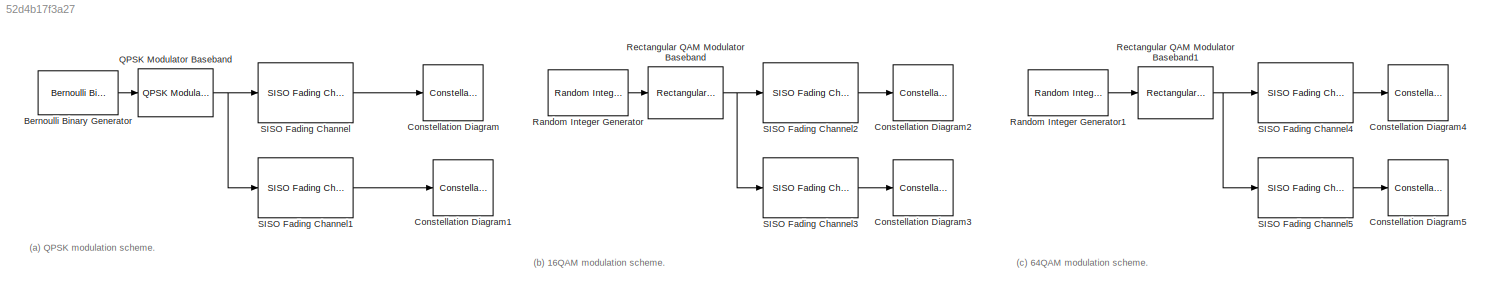
MODEL slx_52d4b17f3a27
KIND model
CONFIG AbsTol = auto
CONFIG EnableMultiTasking = off
CONFIG FixedStep = auto
CONFIG MaxStep = auto
CONFIG MinStep = auto
CONFIG RelTol = 1e-3
CONFIG SampleTimeConstraint = Unconstrained
CONFIG Solver = VariableStepAuto
CONFIG SolverName = VariableStepAuto
CONFIG StartTime = 0.0
CONFIG StopTime = 10.0
BLOCK [Reference] Bernoulli Binary Generator  REF=commrandsrc3/Bernoulli Binary
Generator
  Ports = [0, 1]
  SourceBlock = commrandsrc3/Bernoulli Binary\nGenerator
  SourceProductBaseCode = CM
  SourceProductName = Communications System Toolbox
  SourceType = Bernoulli Binary Generator
BLOCK [ConstellationDiagram] Constellation Diagram
  Ports = [1]
  ScopeSpecificationString = comm.scopes.ConstellationDiagramBlockCfg('CurrentConfiguration', extmgr.ConfigurationSet(extmgr.Configuration('Core','General UI',true,'FigureColor',[1 1 1]),extmgr.Configuration('Core','Source UI',true),extmgr.Configuration('Sources','WiredSimulink',true),extmgr.Configuration('Visuals','Constellation',true,'MinYLim','-1.4915','MaxYLim','0.9514','MinXLim','-1.4915','MaxXLim','0.9514','LineProperti...<+640ch>
BLOCK [ConstellationDiagram] Constellation Diagram1
  Ports = [1]
  ScopeSpecificationString = comm.scopes.ConstellationDiagramBlockCfg('CurrentConfiguration', extmgr.ConfigurationSet(extmgr.Configuration('Core','General UI',true,'FigureColor',[1 1 1]),extmgr.Configuration('Core','Source UI',true),extmgr.Configuration('Sources','WiredSimulink',true),extmgr.Configuration('Visuals','Constellation',true,'MinYLim','-0.88388','MaxYLim','0.88388','MinXLim','-0.88388','MaxXLim','0.88388','Referenc...<+695ch>
BLOCK [ConstellationDiagram] Constellation Diagram2
  Ports = [1]
  ScopeSpecificationString = comm.scopes.ConstellationDiagramBlockCfg('CurrentConfiguration', extmgr.ConfigurationSet(extmgr.Configuration('Core','General UI',true,'FigureColor',[1 1 1]),extmgr.Configuration('Core','Source UI',true),extmgr.Configuration('Sources','WiredSimulink',true),extmgr.Configuration('Visuals','Constellation',true,'MinYLim','-6.9427','MaxYLim','6.9427','MinXLim','-6.9427','MaxXLim','6.9427','ReferenceMar...<+685ch>
BLOCK [ConstellationDiagram] Constellation Diagram3
  Ports = [1]
  ScopeSpecificationString = comm.scopes.ConstellationDiagramBlockCfg('CurrentConfiguration', extmgr.ConfigurationSet(extmgr.Configuration('Core','General UI',true,'FigureColor',[1 1 1]),extmgr.Configuration('Core','Source UI',true),extmgr.Configuration('Sources','WiredSimulink',true),extmgr.Configuration('Visuals','Constellation',true,'MinYLim','-1.6649','MaxYLim','1.6649','MinXLim','-1.6649','MaxXLim','1.6649','ReferenceMar...<+685ch>
BLOCK [ConstellationDiagram] Constellation Diagram4
  Ports = [1]
  ScopeSpecificationString = comm.scopes.ConstellationDiagramBlockCfg('CurrentConfiguration', extmgr.ConfigurationSet(extmgr.Configuration('Core','General UI',true,'FigureColor',[1 1 1]),extmgr.Configuration('Core','Source UI',true),extmgr.Configuration('Sources','WiredSimulink',true),extmgr.Configuration('Visuals','Constellation',true,'MinYLim','-16.1997','MaxYLim','16.1997','MinXLim','-16.1997','MaxXLim','16.1997','Referenc...<+689ch>
BLOCK [ConstellationDiagram] Constellation Diagram5
  Ports = [1]
  ScopeSpecificationString = comm.scopes.ConstellationDiagramBlockCfg('CurrentConfiguration', extmgr.ConfigurationSet(extmgr.Configuration('Core','General UI',true,'FigureColor',[1 1 1]),extmgr.Configuration('Core','Source UI',true),extmgr.Configuration('Sources','WiredSimulink',true),extmgr.Configuration('Visuals','Constellation',true,'MinYLim','-3.8848','MaxYLim','3.8848','MinXLim','-3.8848','MaxXLim','3.8848','ReferenceMar...<+701ch>
BLOCK [Reference] QPSK Modulator Baseband  REF=commdigbbndpm3/QPSK
Modulator
Baseband
  Ports = [1, 1]
  SourceBlock = commdigbbndpm3/QPSK\nModulator\nBaseband
  SourceProductBaseCode = CM
  SourceProductName = Communications System Toolbox
  SourceType = QPSK Modulator Baseband
BLOCK [Reference] Random Integer Generator  REF=commrandsrc3/Random Integer
Generator
  Ports = [0, 1]
  SourceBlock = commrandsrc3/Random Integer\nGenerator
  SourceProductBaseCode = CM
  SourceProductName = Communications System Toolbox
  SourceType = Random Integer Generator
BLOCK [Reference] Random Integer Generator1  REF=commrandsrc3/Random Integer
Generator
  Ports = [0, 1]
  SourceBlock = commrandsrc3/Random Integer\nGenerator
  SourceProductBaseCode = CM
  SourceProductName = Communications System Toolbox
  SourceType = Random Integer Generator
BLOCK [Reference] Rectangular QAM Modulator Baseband  REF=commdigbbndam3/Rectangular QAM
Modulator
Baseband
  Ports = [1, 1]
  SourceBlock = commdigbbndam3/Rectangular QAM\nModulator\nBaseband
  SourceProductBaseCode = CM
  SourceProductName = Communications System Toolbox
  SourceType = Rectangular QAM Modulator Baseband
BLOCK [Reference] Rectangular QAM Modulator Baseband1  REF=commdigbbndam3/Rectangular QAM
Modulator
Baseband
  Ports = [1, 1]
  SourceBlock = commdigbbndam3/Rectangular QAM\nModulator\nBaseband
  SourceProductBaseCode = CM
  SourceProductName = Communications System Toolbox
  SourceType = Rectangular QAM Modulator Baseband
BLOCK [Reference] SISO Fading Channel  REF=commchan3/SISO Fading Channel
  Ports = [1, 1]
  SourceBlock = commchan3/SISO Fading Channel
  SourceProductBaseCode = CM
  SourceProductName = Communications System Toolbox
  SourceType = SISO Fading Channel
BLOCK [Reference] SISO Fading Channel1  REF=commchan3/SISO Fading Channel
  Ports = [1, 1]
  SourceBlock = commchan3/SISO Fading Channel
  SourceProductBaseCode = CM
  SourceProductName = Communications System Toolbox
  SourceType = SISO Fading Channel
BLOCK [Reference] SISO Fading Channel2  REF=commchan3/SISO Fading Channel
  Ports = [1, 1]
  SourceBlock = commchan3/SISO Fading Channel
  SourceProductBaseCode = CM
  SourceProductName = Communications System Toolbox
  SourceType = SISO Fading Channel
BLOCK [Reference] SISO Fading Channel3  REF=commchan3/SISO Fading Channel
  Ports = [1, 1]
  SourceBlock = commchan3/SISO Fading Channel
  SourceProductBaseCode = CM
  SourceProductName = Communications System Toolbox
  SourceType = SISO Fading Channel
BLOCK [Reference] SISO Fading Channel4  REF=commchan3/SISO Fading Channel
  Ports = [1, 1]
  SourceBlock = commchan3/SISO Fading Channel
  SourceProductBaseCode = CM
  SourceProductName = Communications System Toolbox
  SourceType = SISO Fading Channel
BLOCK [Reference] SISO Fading Channel5  REF=commchan3/SISO Fading Channel
  Ports = [1, 1]
  SourceBlock = commchan3/SISO Fading Channel
  SourceProductBaseCode = CM
  SourceProductName = Communications System Toolbox
  SourceType = SISO Fading Channel
ANNOTATION (root): (a) QPSK modulation scheme.
ANNOTATION (root): (b) 16QAM modulation scheme.
ANNOTATION (root): (c) 64QAM modulation scheme.
LINE Bernoulli Binary Generator:1 -> QPSK Modulator Baseband:1
NET QPSK Modulator Baseband:1 -> SISO Fading Channel1:1, SISO Fading Channel:1
LINE Random Integer Generator1:1 -> Rectangular QAM Modulator Baseband1:1
LINE Random Integer Generator:1 -> Rectangular QAM Modulator Baseband:1
NET Rectangular QAM Modulator Baseband1:1 -> SISO Fading Channel4:1, SISO Fading Channel5:1
NET Rectangular QAM Modulator Baseband:1 -> SISO Fading Channel2:1, SISO Fading Channel3:1
LINE SISO Fading Channel1:1 -> Constellation Diagram1:1
LINE SISO Fading Channel2:1 -> Constellation Diagram2:1
LINE SISO Fading Channel3:1 -> Constellation Diagram3:1
LINE SISO Fading Channel4:1 -> Constellation Diagram4:1
LINE SISO Fading Channel5:1 -> Constellation Diagram5:1
LINE SISO Fading Channel:1 -> Constellation Diagram:1
note: NET lines group one-source signal fan-out (src -> all destinations, sorted); 1:1 wires keep LINE
